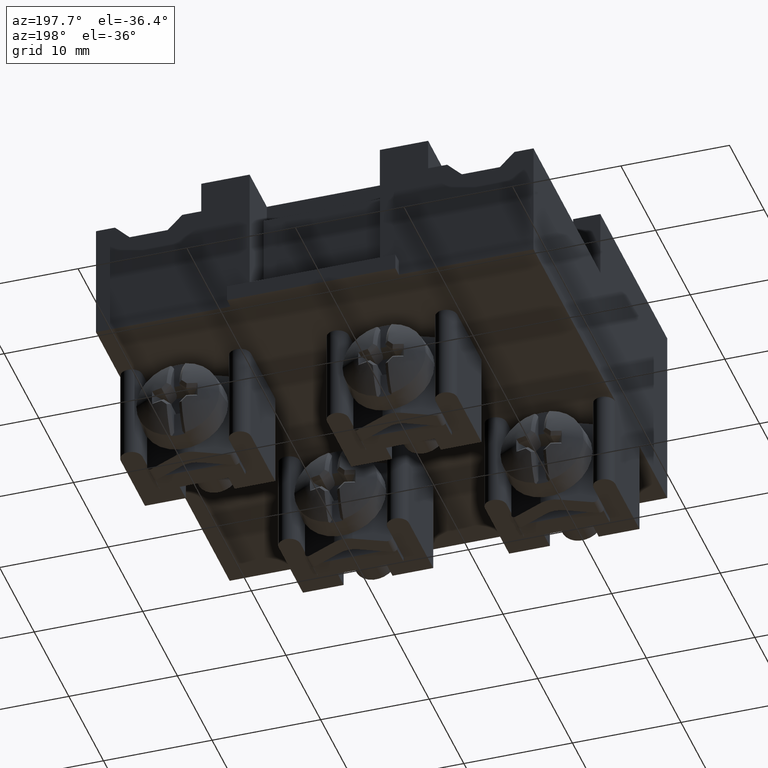
[diagram: clean part render]
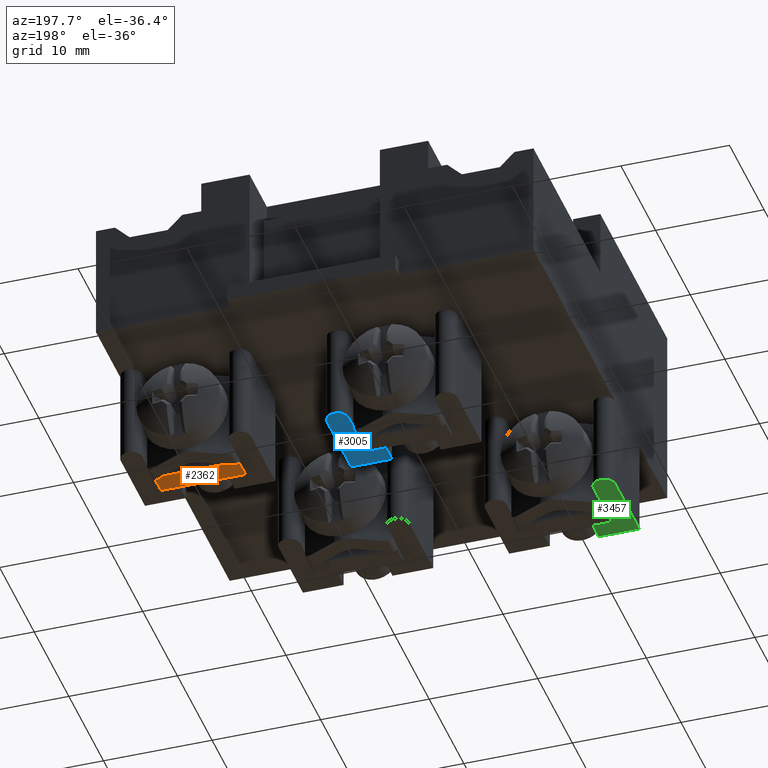
[diagram: same view with three faces highlighted in distinct colors, each labeled with its STEP entity id]
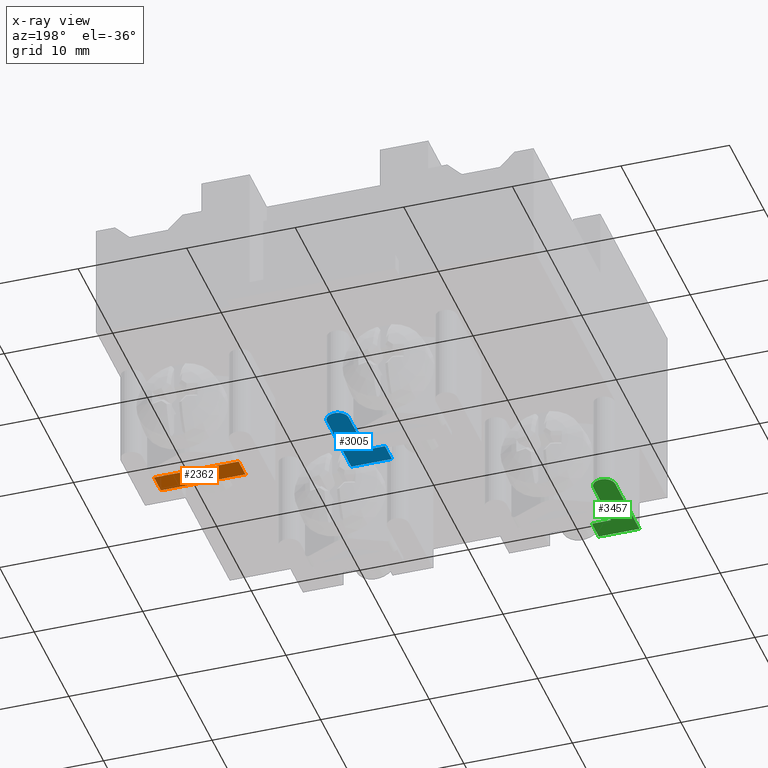
[diagram: x-ray of the same camera — body ghosted, the three highlighted faces saturated]
A machine part, auxiliary view with three faces highlighted in distinct colors.
The next image is the same camera in x-ray (body ghosted, the three faces saturated) — at least one of them is partly hidden behind the body in this view.
Their STEP definitions:

[orange] entity #2362 — the highlighted planar face has unit normal (0, 0, 1).
#2177=CARTESIAN_POINT('',(13.635115196877230,14.728371216523009,-9.199999999999999));
#2178=VERTEX_POINT('',#2177);
#2179=CARTESIAN_POINT('',(13.635115196877230,16.728371216523009,-9.199999999999999));
#2180=VERTEX_POINT('',#2179);
#2181=CARTESIAN_POINT('',(13.635115196877230,14.728371216523009,-9.199999999999999));
#2182=DIRECTION('',(0.0,1.0,0.0));
#2183=VECTOR('',#2182,2.0);
#2184=LINE('',#2181,#2183);
#2185=EDGE_CURVE('',#2178,#2180,#2184,.T.);
#2225=CARTESIAN_POINT('',(5.835115196877229,16.728371216523009,-9.199999999999999));
#2226=VERTEX_POINT('',#2225);
#2227=CARTESIAN_POINT('',(13.635115196877230,16.728371216523009,-9.199999999999999));
#2228=DIRECTION('',(-1.0,0.0,0.0));
#2229=VECTOR('',#2228,7.800000000000001);
#2230=LINE('',#2227,#2229);
#2231=EDGE_CURVE('',#2180,#2226,#2230,.T.);
#2259=CARTESIAN_POINT('',(5.835115196877229,14.728371216523010,-9.199999999999999));
#2260=VERTEX_POINT('',#2259);
#2261=CARTESIAN_POINT('',(5.835115196877229,16.728371216523009,-9.199999999999999));
#2262=DIRECTION('',(0.0,-1.0,0.0));
#2263=VECTOR('',#2262,1.999999999999998);
#2264=LINE('',#2261,#2263);
#2265=EDGE_CURVE('',#2226,#2260,#2264,.T.);
#2307=CARTESIAN_POINT('',(5.835115196877229,14.728371216523010,-9.199999999999999));
#2308=DIRECTION('',(1.0,0.0,0.0));
#2309=VECTOR('',#2308,7.800000000000001);
#2310=LINE('',#2307,#2309);
#2311=EDGE_CURVE('',#2260,#2178,#2310,.T.);
#2351=CARTESIAN_POINT('',(9.735115196877231,15.728371216523007,-9.199999999999999));
#2352=DIRECTION('',(0.0,0.0,1.0));
#2353=DIRECTION('',(1.0,0.0,0.0));
#2354=AXIS2_PLACEMENT_3D('',#2351,#2352,#2353);
#2355=PLANE('',#2354);
#2356=ORIENTED_EDGE('',*,*,#2185,.F.);
#2357=ORIENTED_EDGE('',*,*,#2311,.F.);
#2358=ORIENTED_EDGE('',*,*,#2265,.F.);
#2359=ORIENTED_EDGE('',*,*,#2231,.F.);
#2360=EDGE_LOOP('',(#2356,#2357,#2358,#2359));
#2361=FACE_OUTER_BOUND('',#2360,.T.);
#2362=ADVANCED_FACE('',(#2361),#2355,.F.);

[blue] entity #3005 — the highlighted planar face has unit normal (0, 0, 1).
#2394=CARTESIAN_POINT('',(-5.364884803122772,14.728371216523007,-9.0));
#2395=VERTEX_POINT('',#2394);
#2505=CARTESIAN_POINT('',(-7.014884803122773,14.728371216523009,-9.0));
#2506=VERTEX_POINT('',#2505);
#2507=CARTESIAN_POINT('',(-5.364884803122772,14.728371216523007,-9.0));
#2508=DIRECTION('',(-1.0,0.0,0.0));
#2509=VECTOR('',#2508,1.650000000000001);
#2510=LINE('',#2507,#2509);
#2511=EDGE_CURVE('',#2395,#2506,#2510,.T.);
#2661=CARTESIAN_POINT('',(-5.264884803122771,14.728371216523007,-9.0));
#2662=VERTEX_POINT('',#2661);
#2669=CARTESIAN_POINT('',(-5.264884803122771,14.728371216523007,-9.0));
#2670=DIRECTION('',(-1.0,0.0,0.0));
#2671=VECTOR('',#2670,0.100000000000001);
#2672=LINE('',#2669,#2671);
#2673=EDGE_CURVE('',#2662,#2395,#2672,.T.);
#2921=CARTESIAN_POINT('',(-7.014884803122774,12.728371216523009,-9.0));
#2922=VERTEX_POINT('',#2921);
#2923=CARTESIAN_POINT('',(-7.014884803122774,12.728371216523009,-9.0));
#2924=DIRECTION('',(0.0,1.0,0.0));
#2925=VECTOR('',#2924,2.0);
#2926=LINE('',#2923,#2925);
#2927=EDGE_CURVE('',#2922,#2506,#2926,.T.);
#2964=CARTESIAN_POINT('',(-9.264884803122772,15.868521927034978,-9.0));
#2965=DIRECTION('',(0.0,0.0,1.0));
#2966=DIRECTION('',(1.0,0.0,0.0));
#2967=AXIS2_PLACEMENT_3D('',#2964,#2965,#2966);
#2968=PLANE('',#2967);
#2969=ORIENTED_EDGE('',*,*,#2927,.T.);
#2970=ORIENTED_EDGE('',*,*,#2511,.F.);
#2971=ORIENTED_EDGE('',*,*,#2673,.F.);
#2972=CARTESIAN_POINT('',(-5.264884803122770,19.728371216523009,-9.0));
#2973=VERTEX_POINT('',#2972);
#2974=CARTESIAN_POINT('',(-5.264884803122770,19.728371216523009,-9.0));
#2975=DIRECTION('',(0.0,-1.0,0.0));
#2976=VECTOR('',#2975,5.000000000000002);
#2977=LINE('',#2974,#2976);
#2978=EDGE_CURVE('',#2973,#2662,#2977,.T.);
#2979=ORIENTED_EDGE('',*,*,#2978,.F.);
#2980=CARTESIAN_POINT('',(-3.264884803122770,19.728371216523009,-9.0));
#2981=VERTEX_POINT('',#2980);
#2982=CARTESIAN_POINT('',(-4.264884803122765,19.728371216523005,-9.0));
#2983=DIRECTION('',(0.0,0.0,1.0));
#2984=DIRECTION('',(1.0,0.0,0.0));
#2985=AXIS2_PLACEMENT_3D('',#2982,#2983,#2984);
#2986=CIRCLE('',#2985,1.000000000000005);
#2987=EDGE_CURVE('',#2981,#2973,#2986,.T.);
#2988=ORIENTED_EDGE('',*,*,#2987,.F.);
#2989=CARTESIAN_POINT('',(-3.264884803122774,12.728371216523007,-9.0));
#2990=VERTEX_POINT('',#2989);
#2991=CARTESIAN_POINT('',(-3.264884803122774,12.728371216523007,-9.0));
#2992=DIRECTION('',(0.0,1.0,0.0));
#2993=VECTOR('',#2992,7.000000000000002);
#2994=LINE('',#2991,#2993);
#2995=EDGE_CURVE('',#2990,#2981,#2994,.T.);
#2996=ORIENTED_EDGE('',*,*,#2995,.F.);
#2997=CARTESIAN_POINT('',(-7.014884803122774,12.728371216523009,-9.0));
#2998=DIRECTION('',(1.0,0.0,0.0));
#2999=VECTOR('',#2998,3.750000000000000);
#3000=LINE('',#2997,#2999);
#3001=EDGE_CURVE('',#2922,#2990,#3000,.T.);
#3002=ORIENTED_EDGE('',*,*,#3001,.F.);
#3003=EDGE_LOOP('',(#2969,#2970,#2971,#2979,#2988,#2996,#3002));
#3004=FACE_OUTER_BOUND('',#3003,.T.);
#3005=ADVANCED_FACE('',(#3004),#2968,.F.);

[green] entity #3457 — the highlighted planar face has unit normal (0, 0, 1).
#1387=CARTESIAN_POINT('',(-24.564884803122766,3.278371216523008,-9.0));
#1388=VERTEX_POINT('',#1387);
#1395=CARTESIAN_POINT('',(-24.564884803122773,-3.721628783476994,-9.0));
#1396=VERTEX_POINT('',#1395);
#1397=CARTESIAN_POINT('',(-24.564884803122766,3.278371216523008,-9.0));
#1398=DIRECTION('',(0.0,-1.0,0.0));
#1399=VECTOR('',#1398,7.000000000000002);
#1400=LINE('',#1397,#1399);
#1401=EDGE_CURVE('',#1388,#1396,#1400,.T.);
#1885=CARTESIAN_POINT('',(-22.464884803122768,-1.721628783477003,-9.0));
#1886=VERTEX_POINT('',#1885);
#1916=CARTESIAN_POINT('',(-20.814884803122769,-1.721628783476999,-9.0));
#1917=VERTEX_POINT('',#1916);
#1918=CARTESIAN_POINT('',(-20.814884803122769,-1.721628783476999,-9.0));
#1919=DIRECTION('',(-1.0,0.0,0.0));
#1920=VECTOR('',#1919,1.649999999999999);
#1921=LINE('',#1918,#1920);
#1922=EDGE_CURVE('',#1917,#1886,#1921,.T.);
#3310=CARTESIAN_POINT('',(-20.814884803122773,-3.721628783477000,-9.0));
#3311=VERTEX_POINT('',#3310);
#3318=CARTESIAN_POINT('',(-20.814884803122769,-1.721628783476999,-9.0));
#3319=DIRECTION('',(0.0,-1.0,0.0));
#3320=VECTOR('',#3319,2.000000000000001);
#3321=LINE('',#3318,#3320);
#3322=EDGE_CURVE('',#1917,#3311,#3321,.T.);
#3418=CARTESIAN_POINT('',(-18.564884803122762,-0.581478072965039,-9.0));
#3419=DIRECTION('',(0.0,0.0,1.0));
#3420=DIRECTION('',(1.0,0.0,0.0));
#3421=AXIS2_PLACEMENT_3D('',#3418,#3419,#3420);
#3422=PLANE('',#3421);
#3423=ORIENTED_EDGE('',*,*,#3322,.T.);
#3424=CARTESIAN_POINT('',(-24.564884803122773,-3.721628783476994,-9.0));
#3425=DIRECTION('',(1.0,0.0,0.0));
#3426=VECTOR('',#3425,3.750000000000000);
#3427=LINE('',#3424,#3426);
#3428=EDGE_CURVE('',#1396,#3311,#3427,.T.);
#3429=ORIENTED_EDGE('',*,*,#3428,.F.);
#3430=ORIENTED_EDGE('',*,*,#1401,.F.);
#3431=CARTESIAN_POINT('',(-22.564884803122759,3.278371216523005,-9.0));
#3432=VERTEX_POINT('',#3431);
#3433=CARTESIAN_POINT('',(-23.564884803122759,3.278371216523007,-9.0));
#3434=DIRECTION('',(0.0,0.0,1.0));
#3435=DIRECTION('',(1.0,0.0,0.0));
#3436=AXIS2_PLACEMENT_3D('',#3433,#3434,#3435);
#3437=CIRCLE('',#3436,1.000000000000001);
#3438=EDGE_CURVE('',#3432,#1388,#3437,.T.);
#3439=ORIENTED_EDGE('',*,*,#3438,.F.);
#3440=CARTESIAN_POINT('',(-22.564884803122766,-1.721628783476996,-9.0));
#3441=VERTEX_POINT('',#3440);
#3442=CARTESIAN_POINT('',(-22.564884803122766,-1.721628783476996,-9.0));
#3443=DIRECTION('',(0.0,1.0,0.0));
#3444=VECTOR('',#3443,5.000000000000001);
#3445=LINE('',#3442,#3444);
#3446=EDGE_CURVE('',#3441,#3432,#3445,.T.);
#3447=ORIENTED_EDGE('',*,*,#3446,.F.);
#3448=CARTESIAN_POINT('',(-22.464884803122768,-1.721628783477003,-9.0));
#3449=DIRECTION('',(-1.0,0.0,0.0));
#3450=VECTOR('',#3449,0.099999999999998);
#3451=LINE('',#3448,#3450);
#3452=EDGE_CURVE('',#1886,#3441,#3451,.T.);
#3453=ORIENTED_EDGE('',*,*,#3452,.F.);
#3454=ORIENTED_EDGE('',*,*,#1922,.F.);
#3455=EDGE_LOOP('',(#3423,#3429,#3430,#3439,#3447,#3453,#3454));
#3456=FACE_OUTER_BOUND('',#3455,.T.);
#3457=ADVANCED_FACE('',(#3456),#3422,.F.);